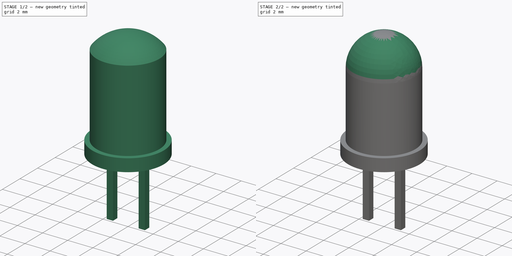
[diagram: build sequence overview — one tinted view per stage of 2, left to right]
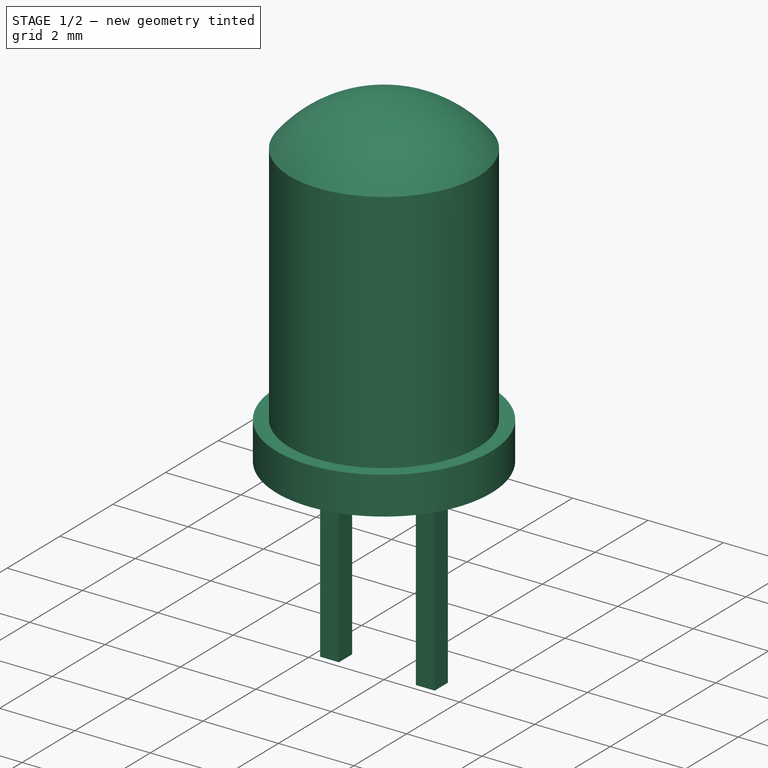
[diagram: stage 1 of 2 — iso view after this stage's code; geometry added in this stage tinted green]
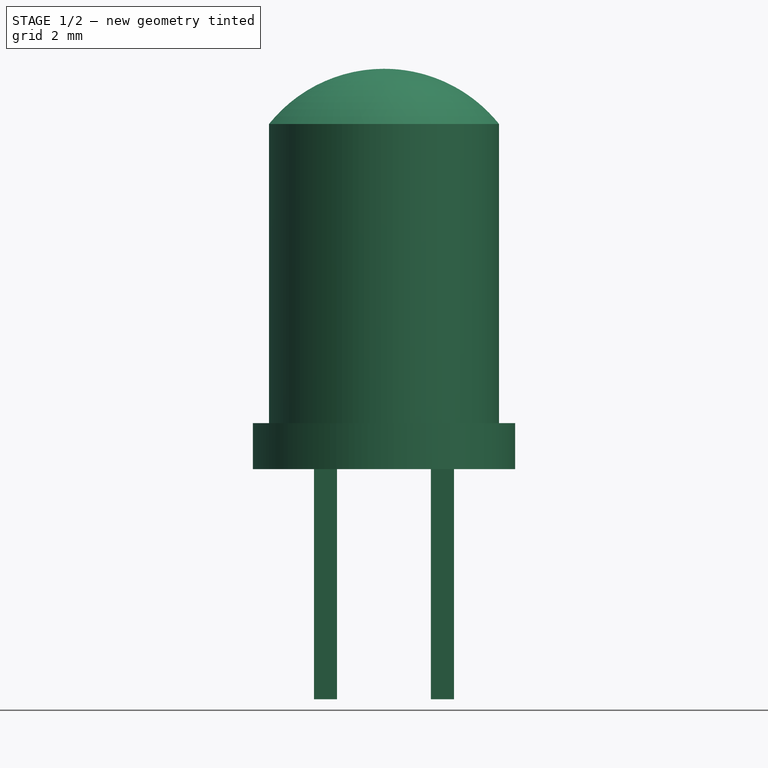
[diagram: stage 1 of 2 — front view after this stage's code; geometry added in this stage tinted green]
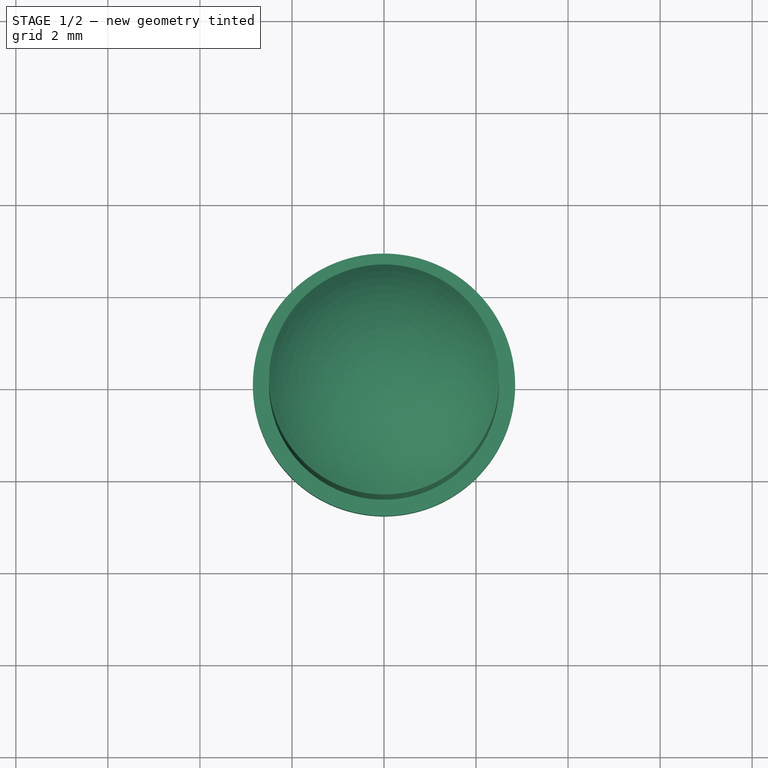
[diagram: stage 1 of 2 — top view after this stage's code; geometry added in this stage tinted green]
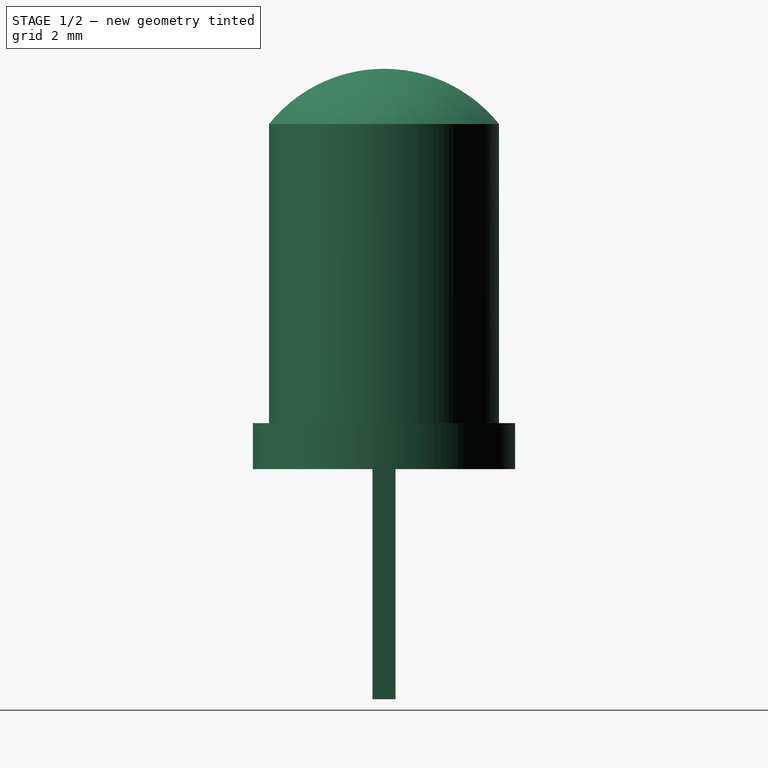
[diagram: stage 1 of 2 — right view after this stage's code; geometry added in this stage tinted green]
FCSTD DOCUMENT  (FreeCAD 0.18.3R)
Label: led_5mm
License: All rights reserved
LicenseURL: http://en.wikipedia.org/wiki/All_rights_reserved
objects: Sketcher::SketchObject×2, PartDesign::Revolution×1, PartDesign::Pad×1, PartDesign::Fillet×1, PartDesign::Body×1
note: 8 computed .brp shape members not serialized (recipe doc carries the construction recipe); baked Part::Feature solids carry a one-line shape summary decoded from their .brp

FEATURE [Sketcher::SketchObject] Sketch
  MapMode = 5
  Placement = pos=(0,0,0) rot=(1,0,0;1.5708rad)
  Support = -> [XZ_Plane]
  sketch-geometry (7):
    g0: LineSegment StartX=9e-16 StartY=0 StartZ=0 EndX=2.85 EndY=0 EndZ=0
    g1: LineSegment StartX=2.85 StartY=0 StartZ=0 EndX=2.85 EndY=1 EndZ=0
    g2: LineSegment StartX=2.85 StartY=1 StartZ=0 EndX=2.5 EndY=1 EndZ=0
    g3: LineSegment StartX=2.5 StartY=1 StartZ=0 EndX=2.5 EndY=7.5 EndZ=0
    g4: LineSegment [constr] StartX=2.5 StartY=7.5 StartZ=0 EndX=0 EndY=7.5 EndZ=0
    g5: ArcOfCircle CenterX=0 CenterY=5.49583 CenterZ=0 NormalX=0 NormalY=0 NormalZ=1 AngleXU=0 Radius=3.20417 StartAngle=0.675756 EndAngle=1.5708
    g6: LineSegment StartX=9e-16 StartY=0 StartZ=0 EndX=9e-16 EndY=8.7 EndZ=0
  constraints (21):
    c: Coincident(g0,g-1)
    c: Horizontal(g0)
    c: DistanceX(g0,g0) = 2.85
    c: Coincident(g1,g0)
    c: Vertical(g1)
    c: DistanceY(g1,g1) = 1
    c: Coincident(g2,g1)
    c: Horizontal(g2)
    c: DistanceX(g-1,g2) = 2.5
    c: Vertical(g3)
    c: DistanceY(g3,g3) = 6.5
    c: Coincident(g3,g2)
    c: Coincident(g4,g3)
    c: Horizontal(g4)
    c: PointOnObject(g4,g-2)
    c: Distance(g0,g5) = 8.7
    c: Coincident(g5,g3)
    c: PointOnObject(g5,g-2)
    c: Coincident(g6,g0)
    c: Coincident(g6,g5)
    c: Vertical(g6)
FEATURE [PartDesign::Revolution] Revolution
  Angle = 360
  Axis = (0,2e-16,1)
  Base = (0,0,0)
  Placement = pos=(0,0,0) rot=(1,0,0;1.5708rad)
  Profile = -> Sketch
  ReferenceAxis = -> Sketch [V_Axis]
  Reversed = true
FEATURE [Sketcher::SketchObject] Sketch001
  MapMode = 5
  Placement = pos=(0,0,0) rot=(1,0,0;3.14159rad)
  Support = -> [Revolution]
  sketch-geometry (8):
    g0: LineSegment StartX=1.02 StartY=0.25 StartZ=0 EndX=1.52 EndY=0.25 EndZ=0
    g1: LineSegment StartX=1.52 StartY=0.25 StartZ=0 EndX=1.52 EndY=-0.25 EndZ=0
    g2: LineSegment StartX=1.52 StartY=-0.25 StartZ=0 EndX=1.02 EndY=-0.25 EndZ=0
    g3: LineSegment StartX=1.02 StartY=-0.25 StartZ=0 EndX=1.02 EndY=0.25 EndZ=0
    g4: LineSegment StartX=-1.52 StartY=0.25 StartZ=0 EndX=-1.02 EndY=0.25 EndZ=0
    g5: LineSegment StartX=-1.02 StartY=0.25 StartZ=0 EndX=-1.02 EndY=-0.25 EndZ=0
    g6: LineSegment StartX=-1.02 StartY=-0.25 StartZ=0 EndX=-1.52 EndY=-0.25 EndZ=0
    g7: LineSegment StartX=-1.52 StartY=-0.25 StartZ=0 EndX=-1.52 EndY=0.25 EndZ=0
  constraints (22):
    c: Coincident(g0,g1)
    c: Coincident(g1,g2)
    c: Coincident(g2,g3)
    c: Coincident(g3,g0)
    c: Horizontal(g0)
    c: Horizontal(g2)
    c: Vertical(g1)
    c: Coincident(g4,g5)
    c: Coincident(g5,g6)
    c: Coincident(g6,g7)
    c: Coincident(g7,g4)
    c: Horizontal(g4)
    c: Horizontal(g6)
    c: Vertical(g7)
    c: Symmetric(g2,g5,g-2)
    c: Symmetric(g4,g5,g-1)
    c: Symmetric(g0,g2,g-1)
    c: Equal(g3,g0)
    c: Equal(g0,g5)
    c: Equal(g5,g4)
    c: DistanceX(g2,g2) = 0.5
    c: DistanceX(g-1,g2) = 1.02
FEATURE [PartDesign::Pad] Pad
  BaseFeature = -> Revolution
  Length = 5
  Length2 = 100
  Placement = pos=(0,0,0) rot=(1,0,0;1.5708rad)
  Profile = -> Sketch001
  Type = 0
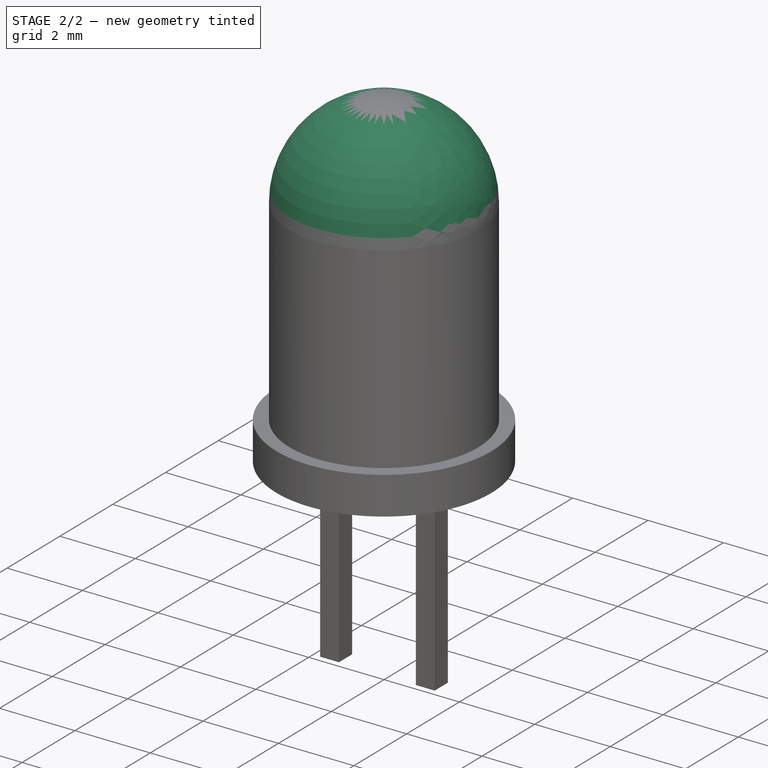
[diagram: stage 2 of 2 — iso view after this stage's code; geometry added in this stage tinted green]
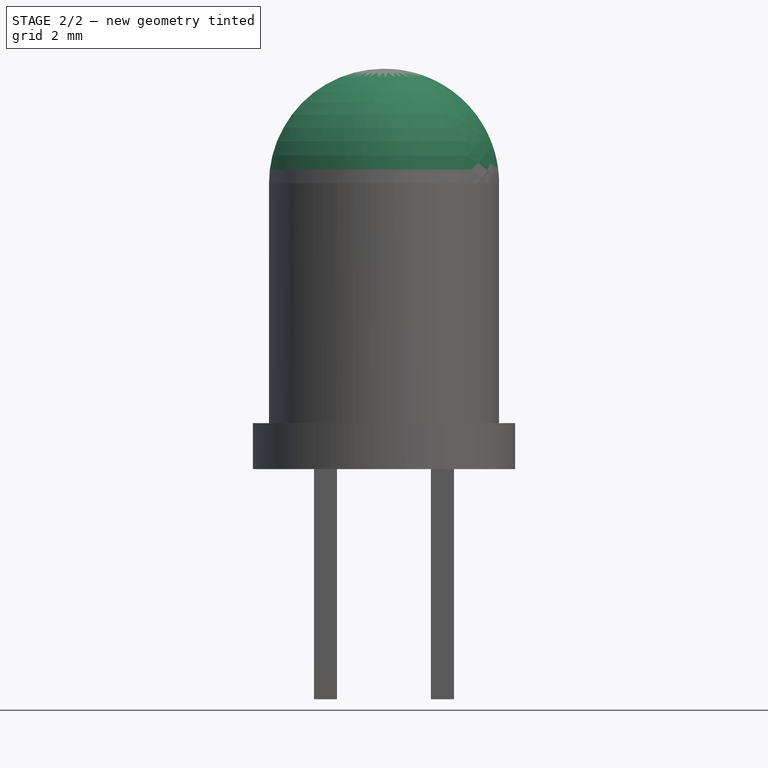
[diagram: stage 2 of 2 — front view after this stage's code; geometry added in this stage tinted green]
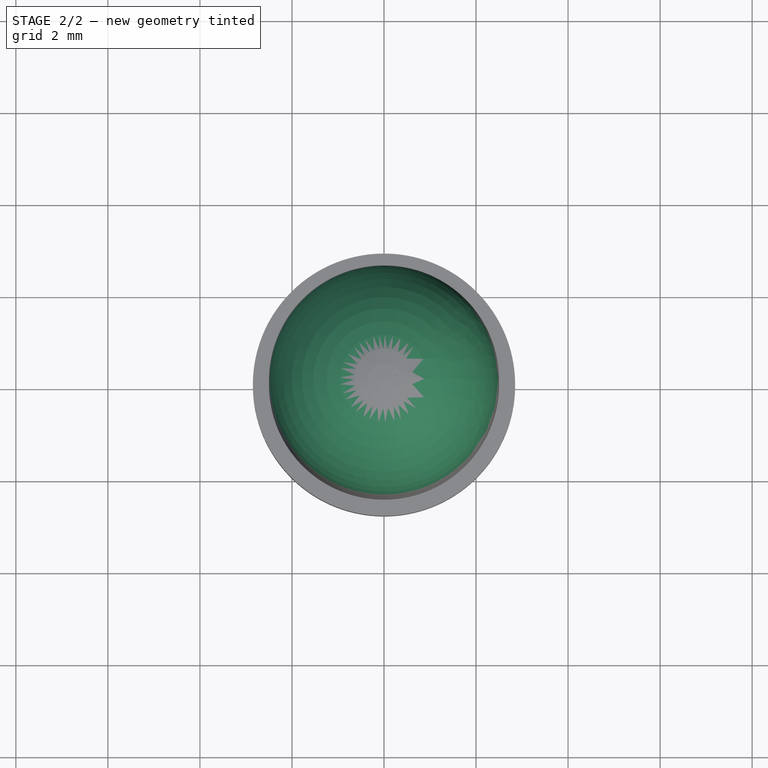
[diagram: stage 2 of 2 — top view after this stage's code; geometry added in this stage tinted green]
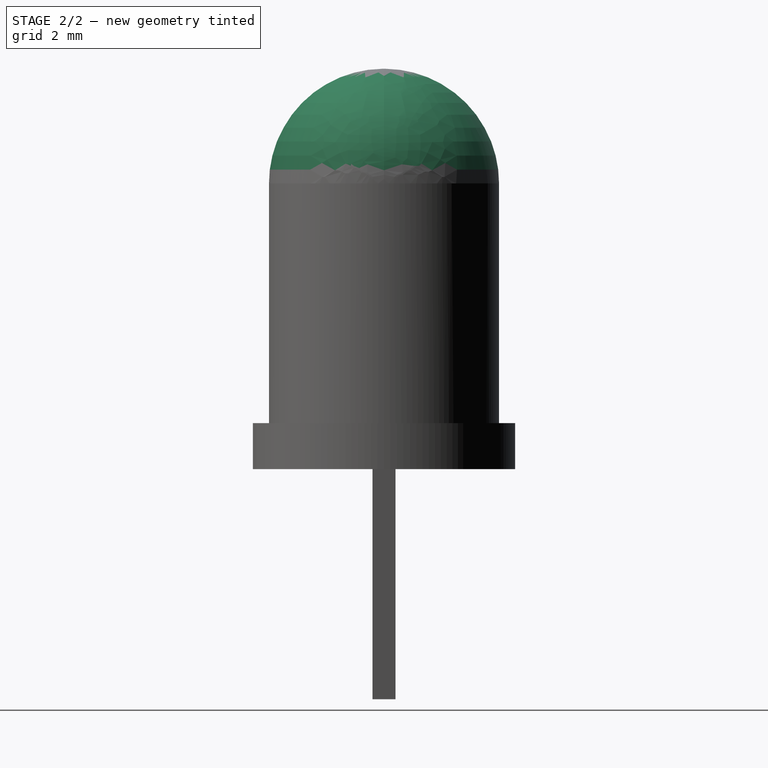
[diagram: stage 2 of 2 — right view after this stage's code; geometry added in this stage tinted green]
FEATURE [PartDesign::Fillet] Fillet
  Base = -> Pad [Edge29]
  BaseFeature = -> Pad
  Placement = pos=(0,0,0) rot=(1,0,0;1.5708rad)
  Radius = 2.49
FEATURE [PartDesign::Body] Body
  Group = -> [Sketch,Revolution,Sketch001,Pad,Fillet]
  Origin = -> Origin
  Tip = -> Fillet
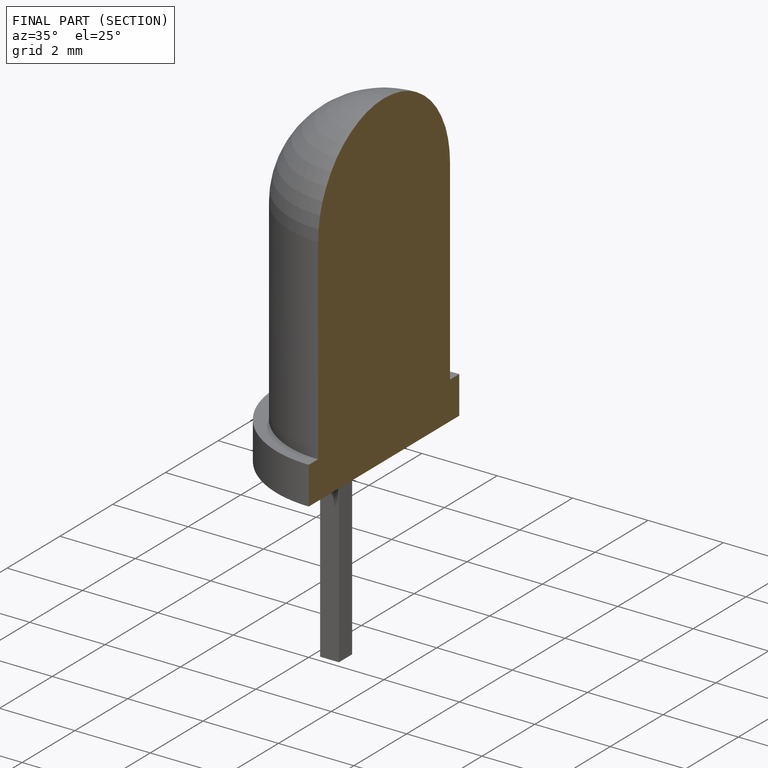
[diagram: finished part — half-section view (interior)]
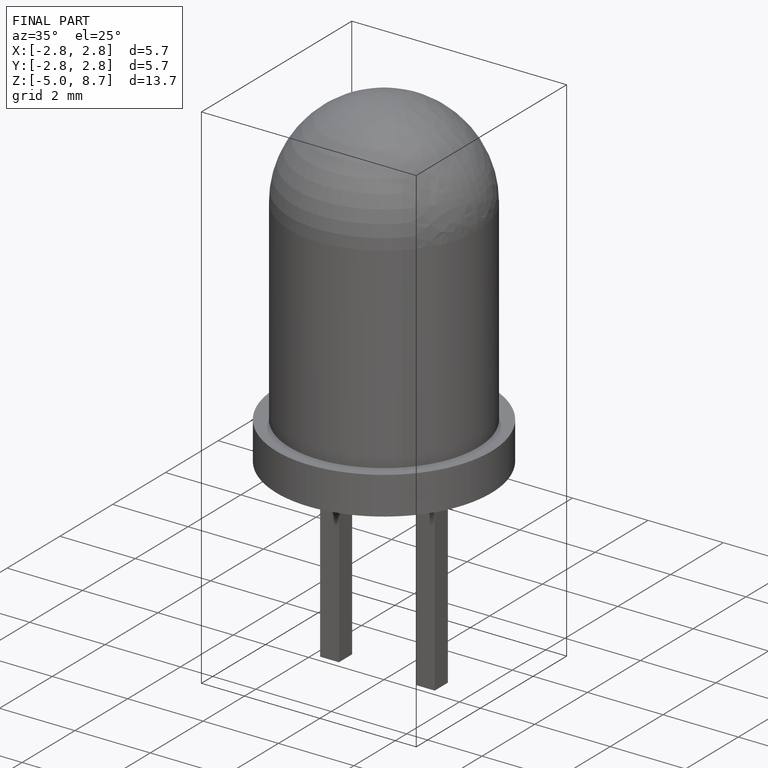
[diagram: finished part — iso view with bounding-box wireframe]
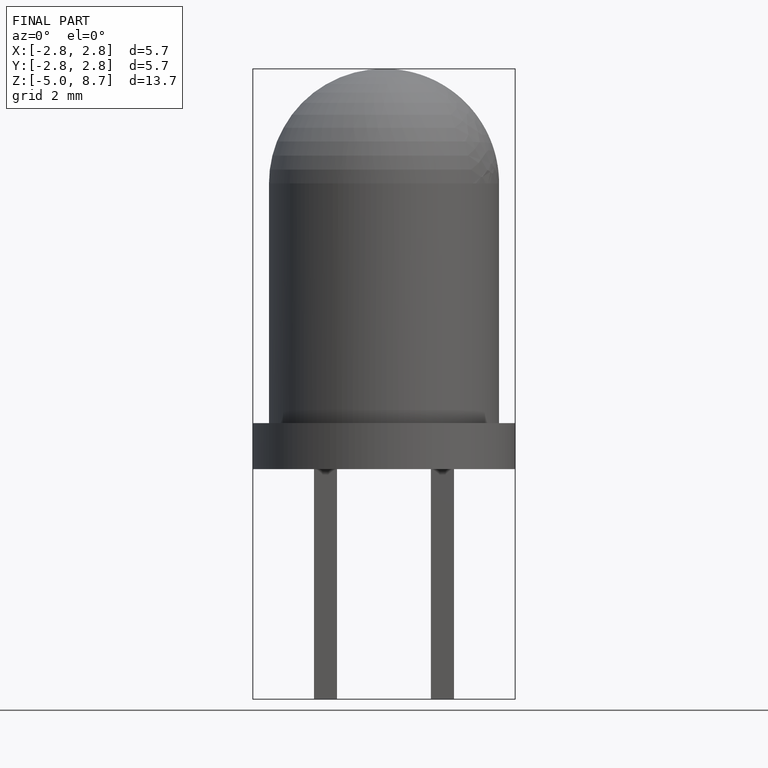
[diagram: finished part — front view with bounding-box wireframe]
